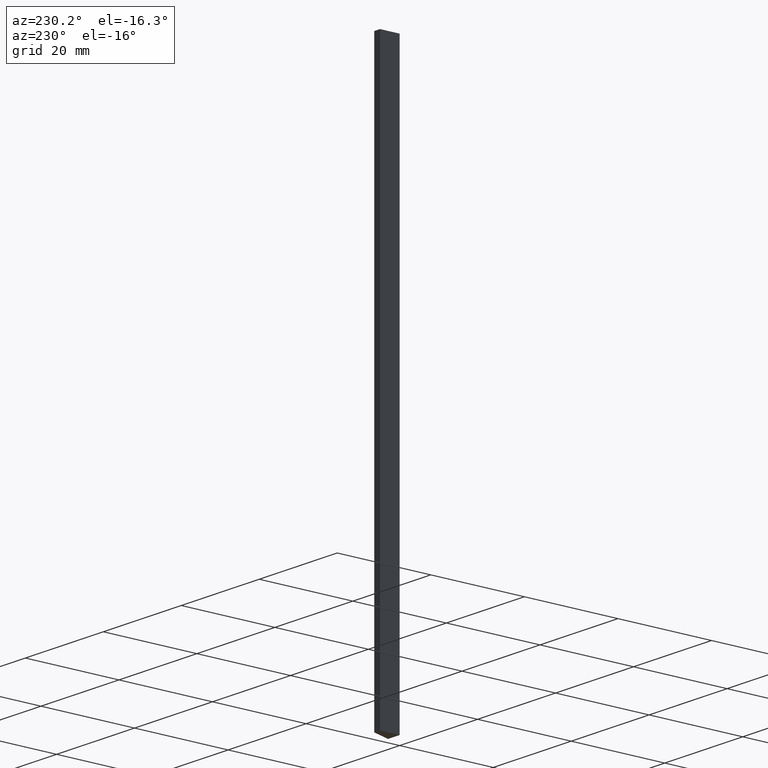
[diagram: clean part render]
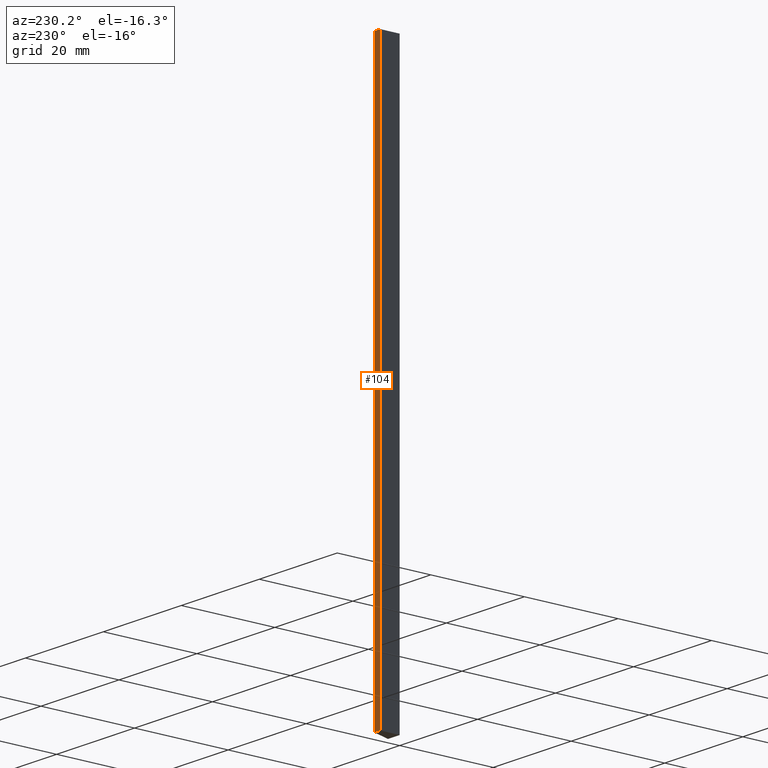
[diagram: same view with one face highlighted and labeled with its STEP entity id]
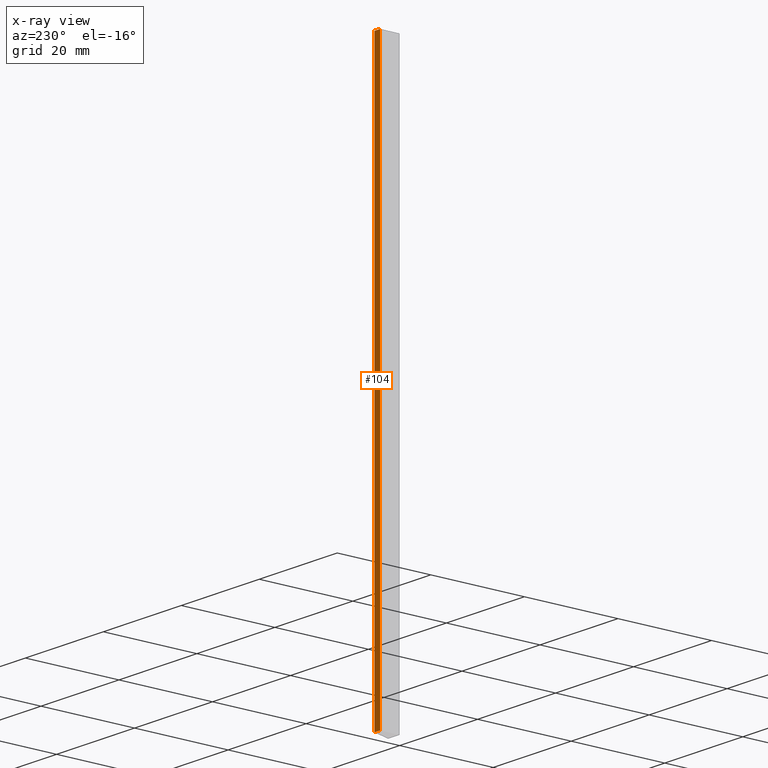
[diagram: x-ray of the same camera — body ghosted, the highlighted face saturated]
A machine part, auxiliary view. The second image highlights one B-rep face of the part: STEP entity #104.
The next image is the same camera in x-ray: the body ghosted, the highlighted face saturated — about 0% of this face is hidden behind the body in this view.
In plain terms, the highlighted planar face has unit normal (0, 1, 0).
Its self-contained STEP definition (entity closure, byte-faithful):
#18=FACE_OUTER_BOUND('',#24,.T.);
#24=EDGE_LOOP('',(#80,#81,#82,#83));
#31=LINE('',#172,#43);
#33=LINE('',#177,#45);
#35=LINE('',#181,#47);
#36=LINE('',#182,#48);
#43=VECTOR('',#144,10.);
#45=VECTOR('',#148,10.);
#47=VECTOR('',#152,10.);
#48=VECTOR('',#153,10.);
#53=VERTEX_POINT('',#166);
#55=VERTEX_POINT('',#170);
#57=VERTEX_POINT('',#175);
#58=VERTEX_POINT('',#180);
#63=EDGE_CURVE('',#53,#55,#31,.T.);
#65=EDGE_CURVE('',#57,#55,#33,.T.);
#67=EDGE_CURVE('',#57,#58,#35,.T.);
#68=EDGE_CURVE('',#58,#53,#36,.T.);
#80=ORIENTED_EDGE('',*,*,#67,.T.);
#81=ORIENTED_EDGE('',*,*,#68,.T.);
#82=ORIENTED_EDGE('',*,*,#63,.T.);
#83=ORIENTED_EDGE('',*,*,#65,.F.);
#98=PLANE('',#133);
#104=ADVANCED_FACE('',(#18),#98,.T.);
#133=AXIS2_PLACEMENT_3D('',#179,#150,#151);
#144=DIRECTION('',(-1.,3.77286803558066E-16,0.));
#148=DIRECTION('',(0.,0.,-1.));
#150=DIRECTION('center_axis',(3.77286803558066E-16,1.,0.));
#151=DIRECTION('ref_axis',(0.,0.,1.));
#152=DIRECTION('',(1.,-3.77286803558066E-16,0.));
#153=DIRECTION('',(0.,0.,-1.));
#166=CARTESIAN_POINT('',(1.47132501608195,4.2,-60.));
#170=CARTESIAN_POINT('',(1.11022302462516E-15,4.2,-60.));
#172=CARTESIAN_POINT('',(1.11022302462516E-15,4.2,-60.));
#175=CARTESIAN_POINT('',(1.11022302462516E-15,4.2,60.));
#177=CARTESIAN_POINT('',(1.11022302462516E-15,4.2,0.));
#179=CARTESIAN_POINT('Origin',(1.11022302462516E-15,4.2,0.));
#180=CARTESIAN_POINT('',(1.47132501608195,4.2,60.));
#181=CARTESIAN_POINT('',(1.11022302462516E-15,4.2,60.));
#182=CARTESIAN_POINT('',(1.47132501608195,4.2,0.));